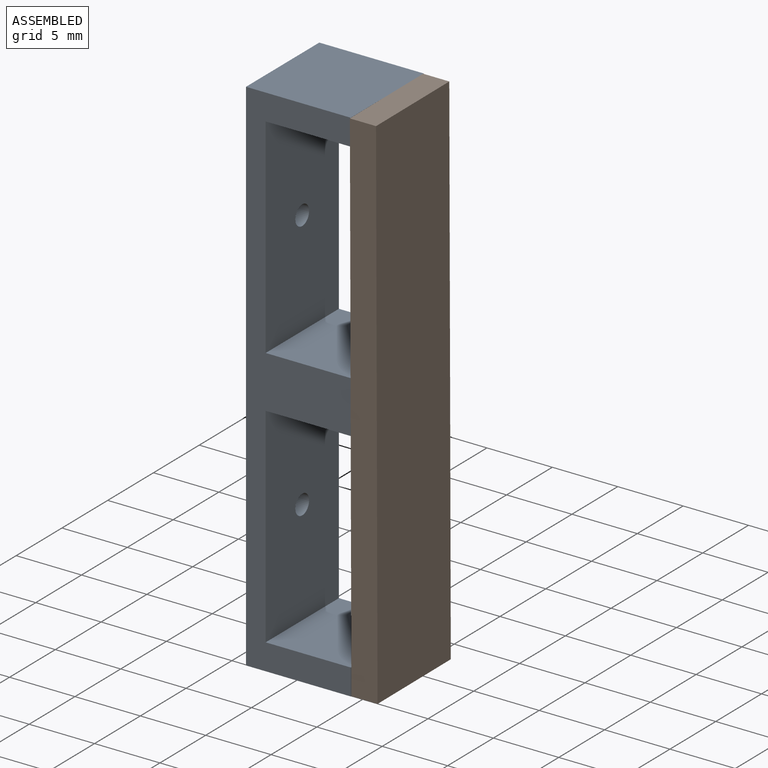
[diagram: assembled view]
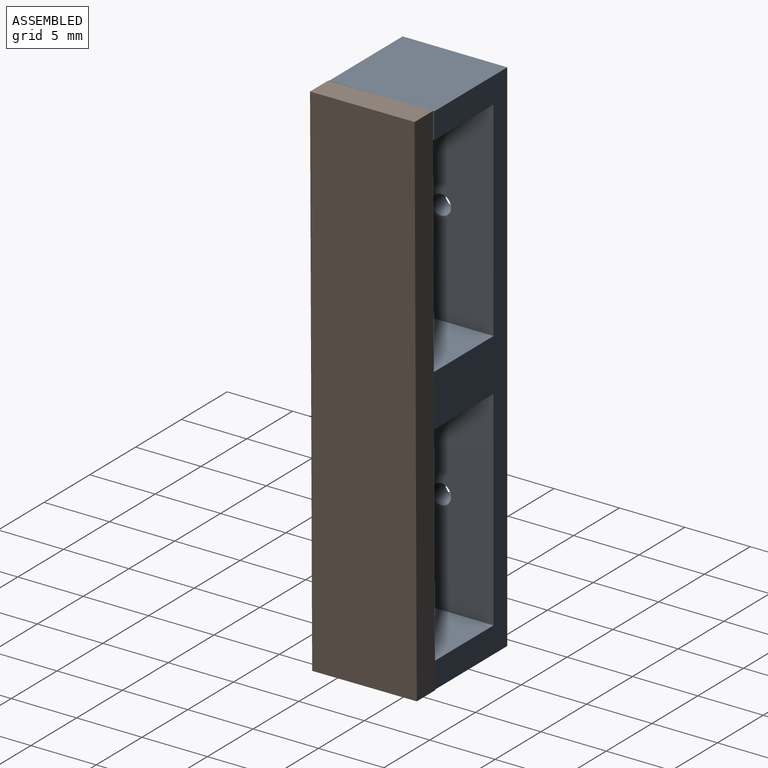
[diagram: assembled view, second angle]
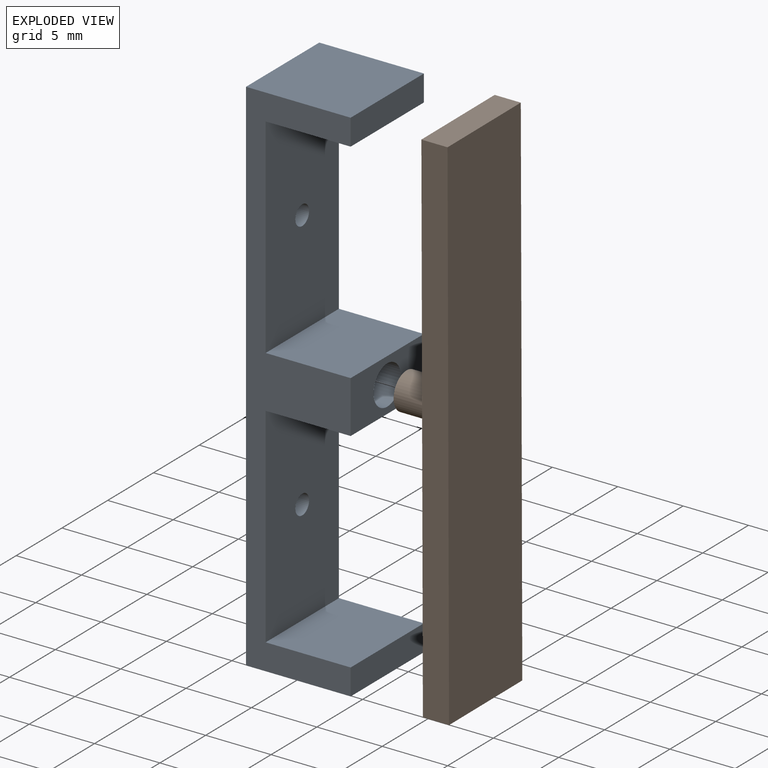
[diagram: exploded view]
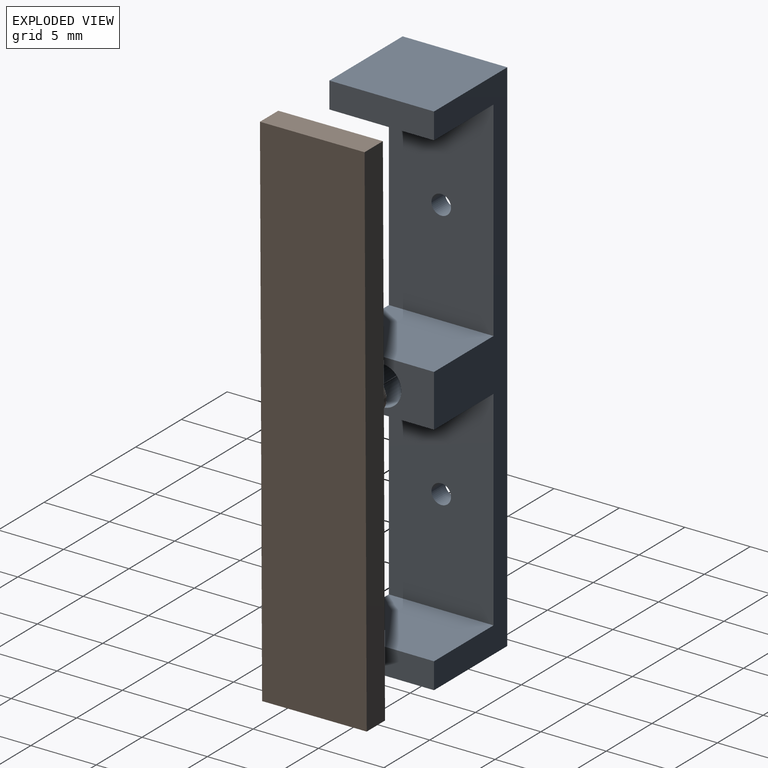
[diagram: exploded view, second angle]
ASSEMBLY  parts=2 mates=2
PART A: 17 faces, bbox 8x8x40 mm
  f0: plane 8x6.5mm, normal (0,0,-1), area 52mm2, adj f1,f11,f12,f13
  f1: plane 8x2mm, normal (1,0,0), area 16mm2, adj f0,f2,f12,f13
  f2: plane 8x8mm, normal (0,0,1), area 64mm2, adj f1,f3,f12,f13
  f3: plane 40x8mm, normal (-1,0,0), area 309.4mm2, adj f2,f4,f12,f13,f14,f15,f16
  f4: plane 8x8mm, normal (0,0,-1), area 64mm2, adj f3,f5,f12,f13
  f5: plane 8x2mm, normal (1,0,0), area 16mm2, adj f4,f6,f12,f13
  f6: plane 8x6.5mm, normal (0,0,1), area 52mm2, adj f5,f7,f12,f13
  f7: plane 16x8mm, normal (1,0,0), area 126.2mm2, adj f6,f8,f12,f13,f16
  f8: plane 8x6.5mm, normal (0,0,-1), area 52mm2, adj f7,f9,f12,f13
  f9: plane 8x4mm, normal (1,0,0), area 24.9mm2, adj f8,f10,f12,f13,f14
  f10: plane 8x6.5mm, normal (0,0,1), area 52mm2, adj f9,f11,f12,f13
  f11: plane 16x8mm, normal (1,0,0), area 126.2mm2, adj f0,f10,f12,f13,f15
  f12: plane 40x8mm, normal (0,-1,0), area 112mm2, adj f0,f1,f2,f3,f4,f5,f6,f7
  f13: plane 40x8mm, normal (0,1,0), area 112mm2, adj f0,f1,f2,f3,f4,f5,f6,f7
  f14: cylinder r=1.5mm len=8mm, axis (1,0,0), area 75.4mm2, adj f3,f9
  f15: cylinder r=0.75mm len=1.5mm, axis (1,0,0), area 7.1mm2, adj f3,f11
  f16: cylinder r=0.75mm len=1.5mm, axis (1,0,0), area 7.1mm2, adj f3,f7
PART B: 8 faces, bbox 6x8x40 mm
  f0: plane 40x2mm, normal (0,-1,0), area 80mm2, adj f1,f3,f4,f5
  f1: plane 8x2mm, normal (0,0,-1), area 16mm2, adj f0,f2,f4,f5
  f2: plane 40x2mm, normal (0,1,0), area 80mm2, adj f1,f3,f4,f5
  f3: plane 8x2mm, normal (0,0,1), area 16mm2, adj f0,f2,f4,f5
  f4: plane 40x8mm, normal (1,0,0), area 320mm2, adj f0,f1,f2,f3
  f5: plane 40x8mm, normal (-1,0,0), area 313.8mm2, adj f0,f1,f2,f3,f6
  f6: cylinder r=1.4mm len=4mm, axis (1,0,0), area 35.2mm2, adj f5,f7
  f7: plane 2.8x2.8mm, normal (-1,0,0), area 6.2mm2, adj f6
PLACE A t=(-13.07,1.79,-4.29)mm fixed
PLACE B rot(axis=(1,0,0),0.2deg) t=(-5.07,-6.13,-4.3)mm
MATE planar A.f14 <-> B.f6  axis (1,0,0) through (-5.07,-2.21,15.71)mm
MATE revolute A.f14 <-> B.f6  axis (1,0,0) through (-5.07,-2.21,15.71)mm
